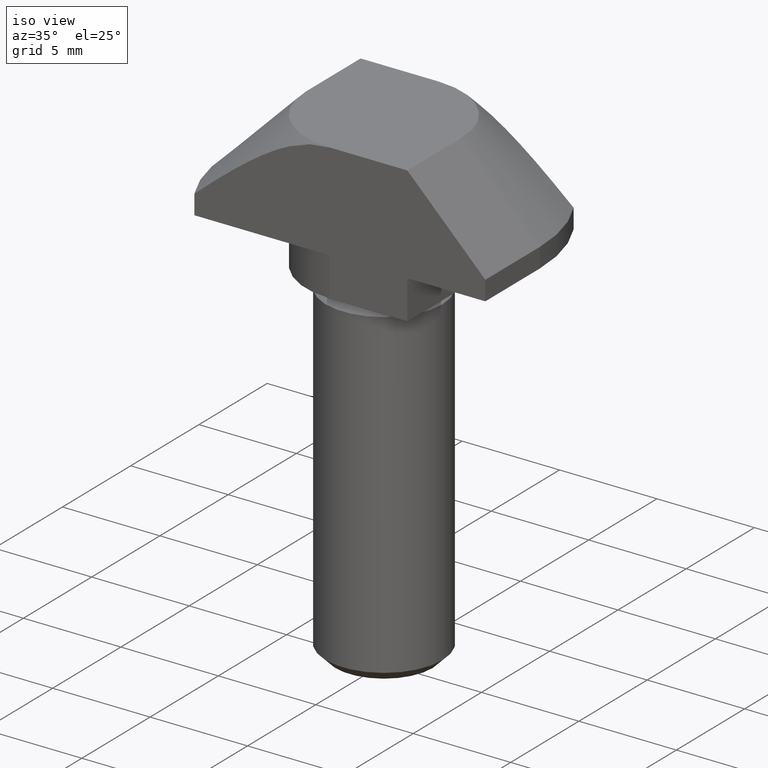
[diagram: clean part render]
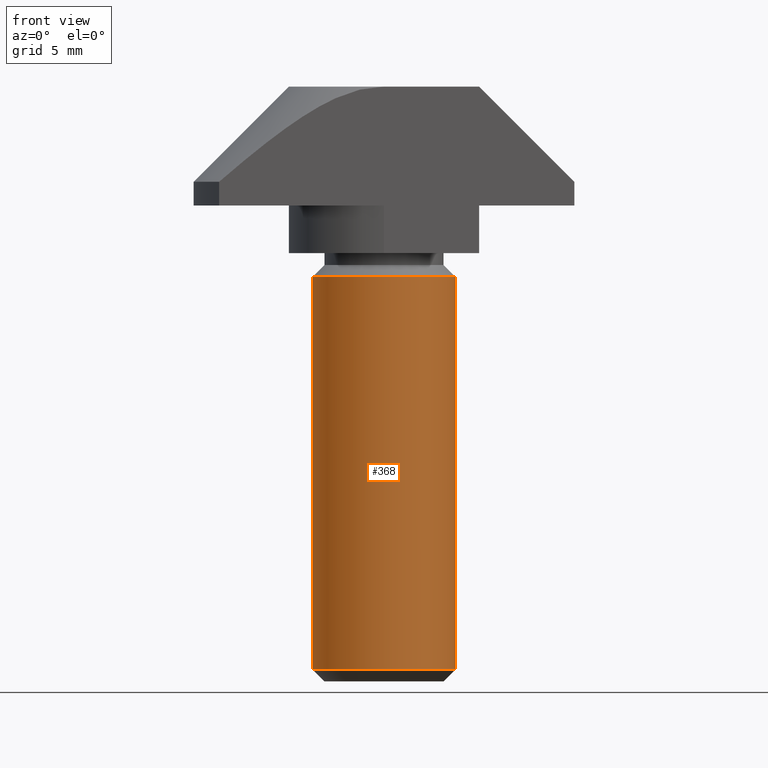
[diagram: tour spotlight — one face highlighted and labeled with its STEP entity id]
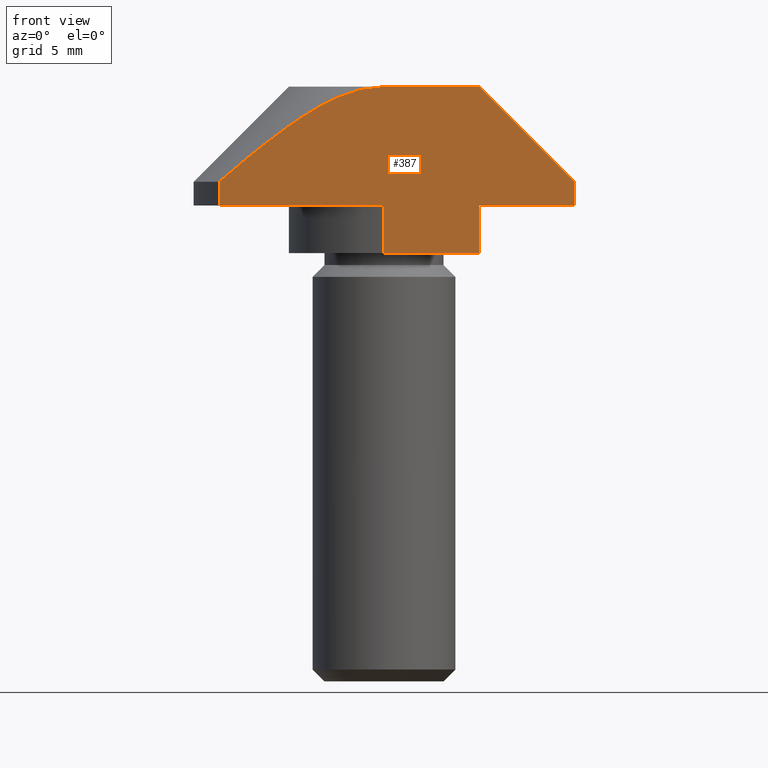
[diagram: tour spotlight — one face highlighted and labeled with its STEP entity id]
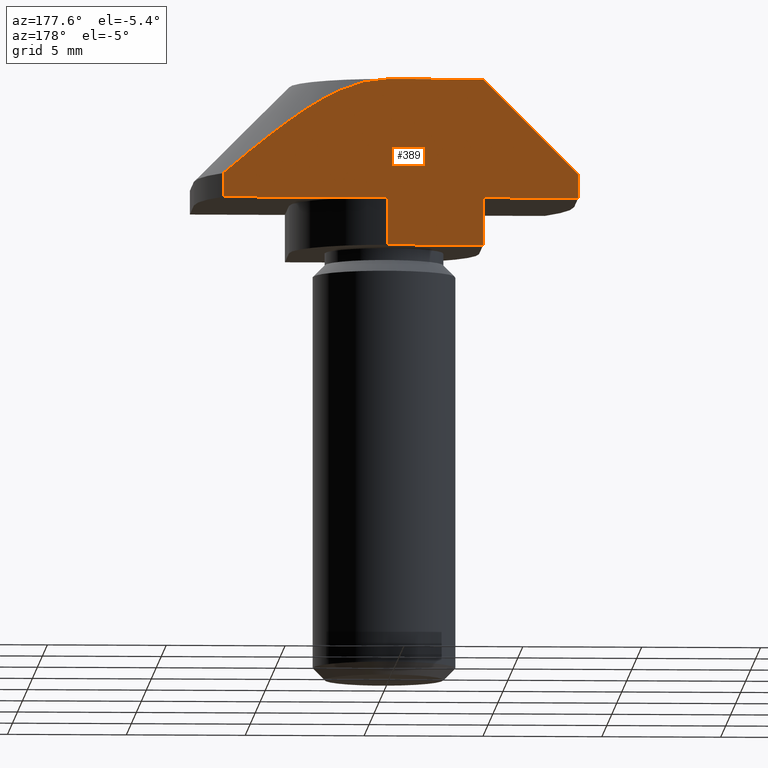
[diagram: tour spotlight — one face highlighted and labeled with its STEP entity id]
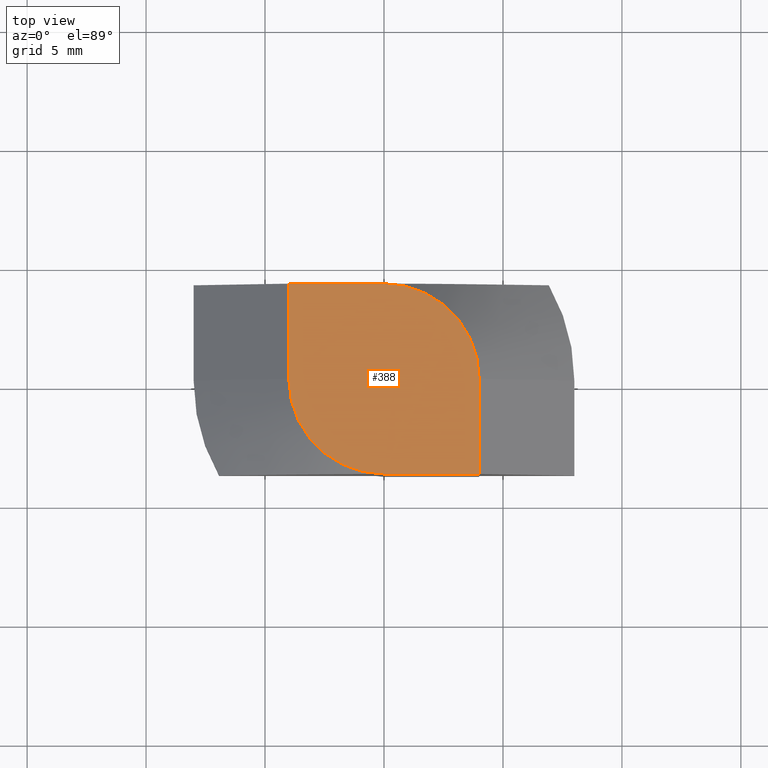
[diagram: tour spotlight — one face highlighted and labeled with its STEP entity id]
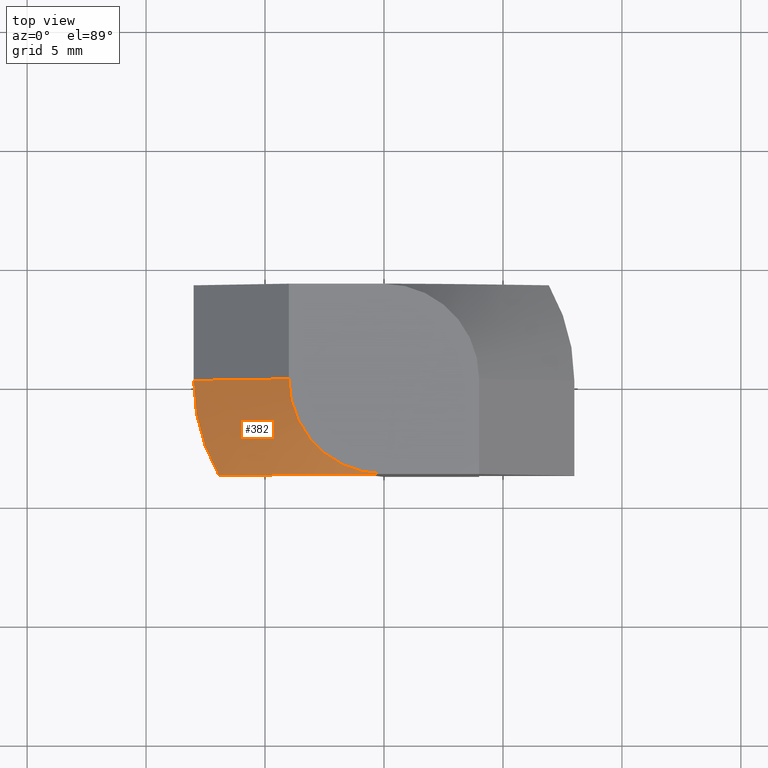
[diagram: tour spotlight — one face highlighted and labeled with its STEP entity id]
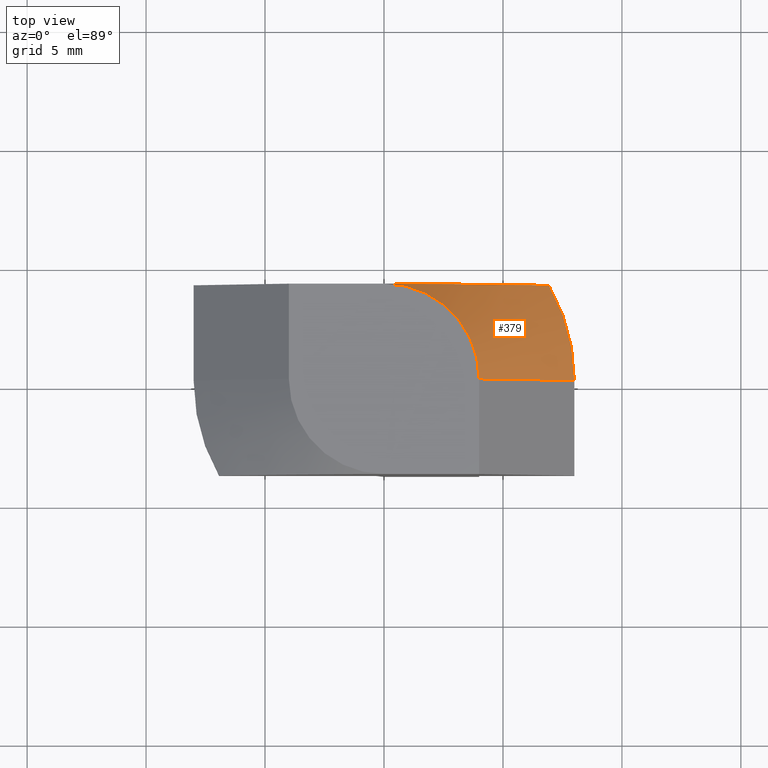
[diagram: tour spotlight — one face highlighted and labeled with its STEP entity id]
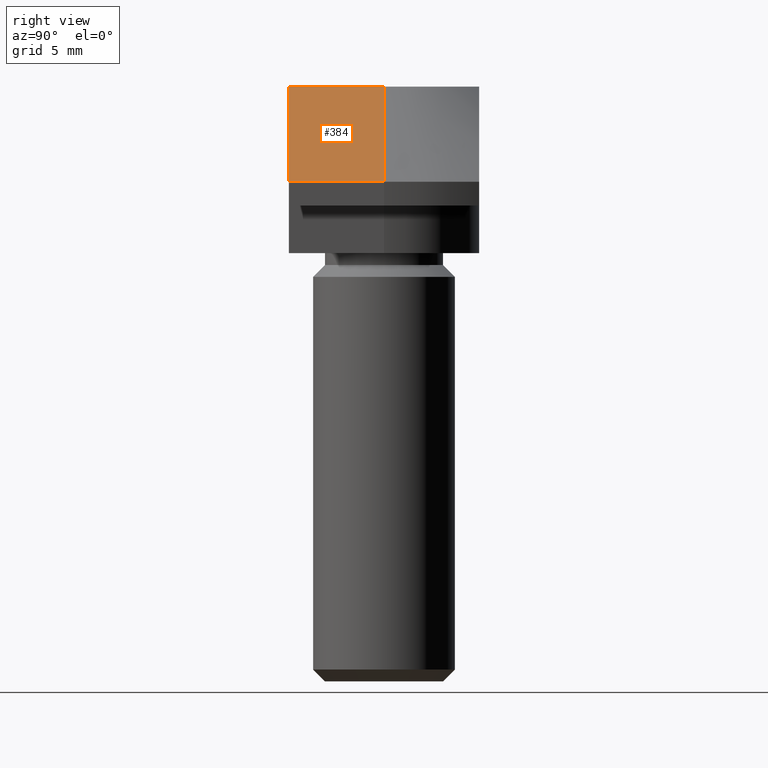
[diagram: tour spotlight — one face highlighted and labeled with its STEP entity id]
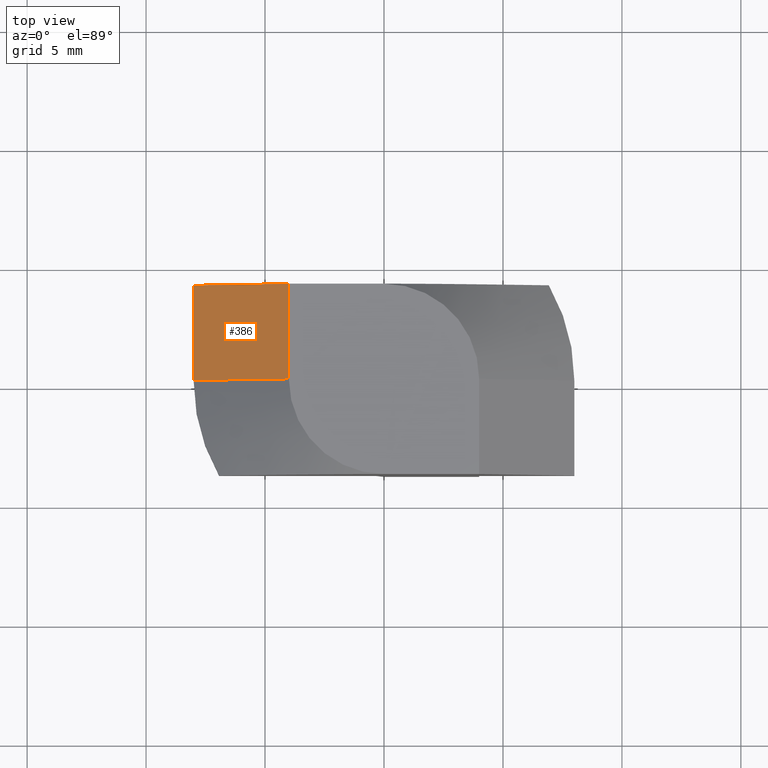
[diagram: tour spotlight — one face highlighted and labeled with its STEP entity id]
A machine part: a face-by-face anatomy tour. The part has 23 B-rep faces; the first image is the clean iso view, then the 8 largest visible faces are spotlighted one at a time (largest first), each with its STEP entity span.

Face 1 — front view, entity #368. In plain terms, the highlighted cylindrical surface (bore or boss wall) has radius 3 mm, axis along (0, 0, -1).
Definition (entity closure, byte-faithful):
#98=CYLINDRICAL_SURFACE('',#395,3.);
#105=FACE_BOUND('',#135,.T.);
#110=FACE_OUTER_BOUND('',#134,.T.);
#134=EDGE_LOOP('',(#263));
#135=EDGE_LOOP('',(#264));
#160=CIRCLE('',#393,3.);
#162=CIRCLE('',#396,3.);
#175=VERTEX_POINT('',#544);
#177=VERTEX_POINT('',#549);
#210=EDGE_CURVE('',#175,#175,#160,.T.);
#212=EDGE_CURVE('',#177,#177,#162,.T.);
#263=ORIENTED_EDGE('',*,*,#212,.F.);
#264=ORIENTED_EDGE('',*,*,#210,.F.);
#368=ADVANCED_FACE('',(#110,#105),#98,.T.);
#393=AXIS2_PLACEMENT_3D('',#545,#434,#435);
#395=AXIS2_PLACEMENT_3D('',#548,#438,#439);
#396=AXIS2_PLACEMENT_3D('',#550,#440,#441);
#434=DIRECTION('center_axis',(0.,0.,1.));
#435=DIRECTION('ref_axis',(1.,0.,0.));
#438=DIRECTION('center_axis',(0.,0.,-1.));
#439=DIRECTION('ref_axis',(1.,0.,0.));
#440=DIRECTION('center_axis',(0.,0.,-1.));
#441=DIRECTION('ref_axis',(1.,0.,0.));
#544=CARTESIAN_POINT('',(-3.,-3.67394039744206E-16,-8.));
#545=CARTESIAN_POINT('Origin',(0.,0.,-8.));
#548=CARTESIAN_POINT('Origin',(0.,0.,-7.5));
#549=CARTESIAN_POINT('',(-3.,3.67394039744206E-16,-24.5));
#550=CARTESIAN_POINT('Origin',(0.,0.,-24.5));

Face 2 — front view, entity #387. In plain terms, the highlighted planar face has unit normal (0, -1, 0).
Definition (entity closure, byte-faithful):
#16=(
BOUNDED_CURVE()
B_SPLINE_CURVE(2,(#629,#630,#631),.UNSPECIFIED.,.F.,.F.)
B_SPLINE_CURVE_WITH_KNOTS((3,3),(0.810833102436449,1.6216662048729),
 .UNSPECIFIED.)
CURVE()
GEOMETRIC_REPRESENTATION_ITEM()
RATIONAL_B_SPLINE_CURVE((1.,1.22474487139159,1.))
REPRESENTATION_ITEM('')
);
#21=LINE('',#572,#55);
#23=LINE('',#578,#57);
#28=LINE('',#590,#62);
#29=LINE('',#593,#63);
#34=LINE('',#606,#68);
#38=LINE('',#623,#72);
#42=LINE('',#638,#76);
#44=LINE('',#642,#78);
#49=LINE('',#652,#83);
#55=VECTOR('',#464,2.);
#57=VECTOR('',#468,2.);
#62=VECTOR('',#481,3.99999999999999);
#63=VECTOR('',#484,6.92820323027551);
#68=VECTOR('',#495,4.00000000000001);
#72=VECTOR('',#509,1.);
#76=VECTOR('',#521,1.);
#78=VECTOR('',#525,5.65685424949238);
#83=VECTOR('',#536,4.);
#95=PLANE('',#427);
#129=FACE_OUTER_BOUND('',#157,.T.);
#157=EDGE_LOOP('',(#337,#338,#339,#340,#341,#342,#343,#344,#345,#346));
#184=VERTEX_POINT('',#568);
#185=VERTEX_POINT('',#570);
#186=VERTEX_POINT('',#574);
#188=VERTEX_POINT('',#577);
#192=VERTEX_POINT('',#592);
#197=VERTEX_POINT('',#604);
#202=VERTEX_POINT('',#622);
#204=VERTEX_POINT('',#628);
#206=VERTEX_POINT('',#636);
#207=VERTEX_POINT('',#640);
#221=EDGE_CURVE('',#184,#185,#21,.T.);
#223=EDGE_CURVE('',#186,#188,#23,.T.);
#230=EDGE_CURVE('',#188,#185,#28,.T.);
#231=EDGE_CURVE('',#192,#184,#29,.T.);
#238=EDGE_CURVE('',#186,#197,#34,.T.);
#245=EDGE_CURVE('',#202,#192,#38,.T.);
#248=EDGE_CURVE('',#204,#202,#16,.T.);
#252=EDGE_CURVE('',#197,#206,#42,.T.);
#254=EDGE_CURVE('',#206,#207,#44,.T.);
#259=EDGE_CURVE('',#207,#204,#49,.T.);
#337=ORIENTED_EDGE('',*,*,#245,.T.);
#338=ORIENTED_EDGE('',*,*,#231,.T.);
#339=ORIENTED_EDGE('',*,*,#221,.T.);
#340=ORIENTED_EDGE('',*,*,#230,.F.);
#341=ORIENTED_EDGE('',*,*,#223,.F.);
#342=ORIENTED_EDGE('',*,*,#238,.T.);
#343=ORIENTED_EDGE('',*,*,#252,.T.);
#344=ORIENTED_EDGE('',*,*,#254,.T.);
#345=ORIENTED_EDGE('',*,*,#259,.T.);
#346=ORIENTED_EDGE('',*,*,#248,.T.);
#387=ADVANCED_FACE('',(#129),#95,.T.);
#427=AXIS2_PLACEMENT_3D('',#651,#534,#535);
#464=DIRECTION('',(0.,0.,-1.));
#468=DIRECTION('',(0.,0.,-1.));
#481=DIRECTION('',(-1.,3.06161699786838E-16,0.));
#484=DIRECTION('',(1.,0.,0.));
#495=DIRECTION('',(1.,0.,0.));
#509=DIRECTION('',(0.,0.,-1.));
#521=DIRECTION('',(0.,0.,1.));
#525=DIRECTION('',(-0.707106781186548,0.,0.707106781186548));
#534=DIRECTION('center_axis',(0.,-1.,0.));
#535=DIRECTION('ref_axis',(0.,0.,-1.));
#536=DIRECTION('',(-1.,0.,-2.55361505453359E-18));
#568=CARTESIAN_POINT('',(0.,-3.99999999999999,-5.));
#570=CARTESIAN_POINT('',(0.,-3.99999999999999,-7.));
#572=CARTESIAN_POINT('',(0.,-3.99999999999999,-5.));
#574=CARTESIAN_POINT('',(3.99999999999999,-3.99999999999999,-5.));
#577=CARTESIAN_POINT('',(3.99999999999999,-3.99999999999999,-7.));
#578=CARTESIAN_POINT('',(3.99999999999999,-3.99999999999999,-5.));
#590=CARTESIAN_POINT('',(0.,-3.99999999999999,-7.));
#592=CARTESIAN_POINT('',(-6.92820323027551,-4.,-5.));
#593=CARTESIAN_POINT('',(-8.,-4.,-5.));
#604=CARTESIAN_POINT('',(8.,-4.,-5.));
#606=CARTESIAN_POINT('',(-8.,-4.,-5.));
#622=CARTESIAN_POINT('',(-6.92820323027551,-4.,-4.));
#623=CARTESIAN_POINT('',(-6.92820323027551,-4.,-4.5));
#628=CARTESIAN_POINT('',(-2.44929359829471E-16,-4.,0.));
#629=CARTESIAN_POINT('Ctrl Pts',(0.,-4.,-8.32667268468867E-16));
#630=CARTESIAN_POINT('Ctrl Pts',(-2.3094010767585,-4.,-1.04083408558608E-15));
#631=CARTESIAN_POINT('Ctrl Pts',(-6.92820323027551,-4.,-4.));
#636=CARTESIAN_POINT('',(8.,-4.,-4.));
#638=CARTESIAN_POINT('',(8.,-4.,-5.));
#640=CARTESIAN_POINT('',(4.,-4.,0.));
#642=CARTESIAN_POINT('',(8.,-4.,-4.));
#651=CARTESIAN_POINT('Origin',(1.11022302462516E-15,-4.,-2.99159267433862));
#652=CARTESIAN_POINT('',(4.,-4.,-3.30907977955027E-23));

Face 3 — auxiliary view, entity #389. In plain terms, the highlighted planar face has unit normal (0, 1, 0).
Definition (entity closure, byte-faithful):
#15=(
BOUNDED_CURVE()
B_SPLINE_CURVE(2,(#610,#611,#612),.UNSPECIFIED.,.F.,.F.)
B_SPLINE_CURVE_WITH_KNOTS((3,3),(0.810833102436449,1.6216662048729),
 .UNSPECIFIED.)
CURVE()
GEOMETRIC_REPRESENTATION_ITEM()
RATIONAL_B_SPLINE_CURVE((1.,1.22474487139159,1.))
REPRESENTATION_ITEM('')
);
#18=LINE('',#563,#52);
#26=LINE('',#587,#60);
#27=LINE('',#589,#61);
#31=LINE('',#598,#65);
#32=LINE('',#601,#66);
#36=LINE('',#619,#70);
#46=LINE('',#646,#80);
#48=LINE('',#650,#82);
#50=LINE('',#654,#84);
#52=VECTOR('',#455,2.);
#60=VECTOR('',#477,2.);
#61=VECTOR('',#480,4.);
#65=VECTOR('',#488,4.);
#66=VECTOR('',#491,6.92820323027551);
#70=VECTOR('',#505,1.);
#80=VECTOR('',#529,1.);
#82=VECTOR('',#533,5.65685424949238);
#84=VECTOR('',#539,4.);
#97=PLANE('',#429);
#131=FACE_OUTER_BOUND('',#159,.T.);
#159=EDGE_LOOP('',(#353,#354,#355,#356,#357,#358,#359,#360,#361,#362));
#180=VERTEX_POINT('',#559);
#182=VERTEX_POINT('',#562);
#190=VERTEX_POINT('',#583);
#191=VERTEX_POINT('',#585);
#194=VERTEX_POINT('',#596);
#195=VERTEX_POINT('',#600);
#198=VERTEX_POINT('',#608);
#199=VERTEX_POINT('',#609);
#208=VERTEX_POINT('',#644);
#209=VERTEX_POINT('',#648);
#216=EDGE_CURVE('',#180,#182,#18,.T.);
#228=EDGE_CURVE('',#190,#191,#26,.T.);
#229=EDGE_CURVE('',#182,#191,#27,.T.);
#234=EDGE_CURVE('',#180,#194,#31,.T.);
#235=EDGE_CURVE('',#195,#190,#32,.T.);
#239=EDGE_CURVE('',#198,#199,#15,.T.);
#243=EDGE_CURVE('',#199,#195,#36,.T.);
#256=EDGE_CURVE('',#194,#208,#46,.T.);
#258=EDGE_CURVE('',#208,#209,#48,.T.);
#260=EDGE_CURVE('',#209,#198,#50,.T.);
#353=ORIENTED_EDGE('',*,*,#243,.T.);
#354=ORIENTED_EDGE('',*,*,#235,.T.);
#355=ORIENTED_EDGE('',*,*,#228,.T.);
#356=ORIENTED_EDGE('',*,*,#229,.F.);
#357=ORIENTED_EDGE('',*,*,#216,.F.);
#358=ORIENTED_EDGE('',*,*,#234,.T.);
#359=ORIENTED_EDGE('',*,*,#256,.T.);
#360=ORIENTED_EDGE('',*,*,#258,.T.);
#361=ORIENTED_EDGE('',*,*,#260,.T.);
#362=ORIENTED_EDGE('',*,*,#239,.T.);
#389=ADVANCED_FACE('',(#131),#97,.T.);
#429=AXIS2_PLACEMENT_3D('',#655,#540,#541);
#455=DIRECTION('',(0.,0.,-1.));
#477=DIRECTION('',(0.,0.,-1.));
#480=DIRECTION('',(1.,0.,0.));
#488=DIRECTION('',(-1.,0.,0.));
#491=DIRECTION('',(-1.,0.,0.));
#505=DIRECTION('',(0.,0.,-1.));
#529=DIRECTION('',(0.,0.,1.));
#533=DIRECTION('',(0.707106781186547,0.,0.707106781186548));
#539=DIRECTION('',(1.,0.,2.55361505453359E-18));
#540=DIRECTION('center_axis',(0.,1.,0.));
#541=DIRECTION('ref_axis',(0.,0.,1.));
#559=CARTESIAN_POINT('',(-4.,3.99999999999998,-5.));
#562=CARTESIAN_POINT('',(-4.,3.99999999999998,-7.));
#563=CARTESIAN_POINT('',(-4.,3.99999999999998,-5.));
#583=CARTESIAN_POINT('',(0.,3.99999999999998,-5.));
#585=CARTESIAN_POINT('',(0.,3.99999999999998,-7.));
#587=CARTESIAN_POINT('',(0.,3.99999999999998,-5.));
#589=CARTESIAN_POINT('',(0.,3.99999999999998,-7.));
#596=CARTESIAN_POINT('',(-8.,4.,-5.));
#598=CARTESIAN_POINT('',(-8.,4.,-5.));
#600=CARTESIAN_POINT('',(6.92820323027551,4.,-5.));
#601=CARTESIAN_POINT('',(-8.,4.,-5.));
#608=CARTESIAN_POINT('',(2.44929359829471E-16,4.,0.));
#609=CARTESIAN_POINT('',(6.92820323027551,4.,-4.));
#610=CARTESIAN_POINT('Ctrl Pts',(0.,4.,2.77555756156289E-16));
#611=CARTESIAN_POINT('Ctrl Pts',(2.3094010767585,4.,-2.77555756156289E-16));
#612=CARTESIAN_POINT('Ctrl Pts',(6.92820323027551,4.,-4.));
#619=CARTESIAN_POINT('',(6.92820323027551,4.,-4.5));
#644=CARTESIAN_POINT('',(-8.,4.,-4.));
#646=CARTESIAN_POINT('',(-8.,4.,-4.));
#648=CARTESIAN_POINT('',(-4.,4.,0.));
#650=CARTESIAN_POINT('',(-4.,4.,-2.04289535270665E-17));
#654=CARTESIAN_POINT('',(4.,4.,-3.30907977955027E-23));
#655=CARTESIAN_POINT('Origin',(1.11022302462516E-15,4.,-2.99159267433862));

Face 4 — top view, entity #388. In plain terms, the highlighted planar face has unit normal (-0, 0, 1).
Definition (entity closure, byte-faithful):
#43=LINE('',#641,#77);
#47=LINE('',#649,#81);
#49=LINE('',#652,#83);
#50=LINE('',#654,#84);
#77=VECTOR('',#524,4.);
#81=VECTOR('',#532,4.);
#83=VECTOR('',#536,4.);
#84=VECTOR('',#539,4.);
#96=PLANE('',#428);
#130=FACE_OUTER_BOUND('',#158,.T.);
#158=EDGE_LOOP('',(#347,#348,#349,#350,#351,#352));
#171=CIRCLE('',#416,4.);
#174=CIRCLE('',#422,4.);
#198=VERTEX_POINT('',#608);
#200=VERTEX_POINT('',#613);
#204=VERTEX_POINT('',#628);
#205=VERTEX_POINT('',#632);
#207=VERTEX_POINT('',#640);
#209=VERTEX_POINT('',#648);
#240=EDGE_CURVE('',#200,#198,#171,.T.);
#249=EDGE_CURVE('',#205,#204,#174,.T.);
#253=EDGE_CURVE('',#200,#207,#43,.T.);
#257=EDGE_CURVE('',#209,#205,#47,.T.);
#259=EDGE_CURVE('',#207,#204,#49,.T.);
#260=EDGE_CURVE('',#209,#198,#50,.T.);
#347=ORIENTED_EDGE('',*,*,#240,.T.);
#348=ORIENTED_EDGE('',*,*,#260,.F.);
#349=ORIENTED_EDGE('',*,*,#257,.T.);
#350=ORIENTED_EDGE('',*,*,#249,.T.);
#351=ORIENTED_EDGE('',*,*,#259,.F.);
#352=ORIENTED_EDGE('',*,*,#253,.F.);
#388=ADVANCED_FACE('',(#130),#96,.T.);
#416=AXIS2_PLACEMENT_3D('',#614,#498,#499);
#422=AXIS2_PLACEMENT_3D('',#633,#515,#516);
#428=AXIS2_PLACEMENT_3D('',#653,#537,#538);
#498=DIRECTION('center_axis',(-2.55361505453359E-18,0.,1.));
#499=DIRECTION('ref_axis',(1.,0.,0.));
#515=DIRECTION('center_axis',(-2.55361505453359E-18,0.,1.));
#516=DIRECTION('ref_axis',(-1.,0.,0.));
#524=DIRECTION('',(0.,-1.,0.));
#532=DIRECTION('',(0.,-1.,0.));
#536=DIRECTION('',(-1.,0.,-2.55361505453359E-18));
#537=DIRECTION('center_axis',(-2.55361505453359E-18,0.,1.));
#538=DIRECTION('ref_axis',(1.,0.,2.55361505453359E-18));
#539=DIRECTION('',(1.,0.,2.55361505453359E-18));
#608=CARTESIAN_POINT('',(2.44929359829471E-16,4.,0.));
#613=CARTESIAN_POINT('',(4.,0.,0.));
#614=CARTESIAN_POINT('Origin',(0.,0.,0.));
#628=CARTESIAN_POINT('',(-2.44929359829471E-16,-4.,0.));
#632=CARTESIAN_POINT('',(-4.,0.,0.));
#633=CARTESIAN_POINT('Origin',(0.,0.,0.));
#640=CARTESIAN_POINT('',(4.,-4.,0.));
#641=CARTESIAN_POINT('',(4.,0.,-3.30907977955027E-23));
#648=CARTESIAN_POINT('',(-4.,4.,0.));
#649=CARTESIAN_POINT('',(-4.,0.,-2.04289535270665E-17));
#652=CARTESIAN_POINT('',(4.,-4.,-3.30907977955027E-23));
#653=CARTESIAN_POINT('Origin',(-4.,0.,-2.04289535270665E-17));
#654=CARTESIAN_POINT('',(4.,4.,-3.30907977955027E-23));

Face 5 — top view, entity #382. In plain terms, the highlighted conical surface has half-angle 45 deg.
Definition (entity closure, byte-faithful):
#16=(
BOUNDED_CURVE()
B_SPLINE_CURVE(2,(#629,#630,#631),.UNSPECIFIED.,.F.,.F.)
B_SPLINE_CURVE_WITH_KNOTS((3,3),(0.810833102436449,1.6216662048729),
 .UNSPECIFIED.)
CURVE()
GEOMETRIC_REPRESENTATION_ITEM()
RATIONAL_B_SPLINE_CURVE((1.,1.22474487139159,1.))
REPRESENTATION_ITEM('')
);
#40=LINE('',#634,#74);
#74=VECTOR('',#517,5.65685424949238);
#124=FACE_OUTER_BOUND('',#152,.T.);
#152=EDGE_LOOP('',(#317,#318,#319,#320));
#173=CIRCLE('',#420,8.);
#174=CIRCLE('',#422,4.);
#202=VERTEX_POINT('',#622);
#203=VERTEX_POINT('',#624);
#204=VERTEX_POINT('',#628);
#205=VERTEX_POINT('',#632);
#246=EDGE_CURVE('',#203,#202,#173,.T.);
#248=EDGE_CURVE('',#204,#202,#16,.T.);
#249=EDGE_CURVE('',#205,#204,#174,.T.);
#250=EDGE_CURVE('',#205,#203,#40,.T.);
#317=ORIENTED_EDGE('',*,*,#248,.F.);
#318=ORIENTED_EDGE('',*,*,#249,.F.);
#319=ORIENTED_EDGE('',*,*,#250,.T.);
#320=ORIENTED_EDGE('',*,*,#246,.T.);
#366=CONICAL_SURFACE('',#421,6.,45.);
#382=ADVANCED_FACE('',(#124),#366,.T.);
#420=AXIS2_PLACEMENT_3D('',#625,#510,#511);
#421=AXIS2_PLACEMENT_3D('',#627,#513,#514);
#422=AXIS2_PLACEMENT_3D('',#633,#515,#516);
#510=DIRECTION('center_axis',(0.,0.,1.));
#511=DIRECTION('ref_axis',(-1.,-4.16333634234434E-16,0.));
#513=DIRECTION('center_axis',(0.,0.,-1.));
#514=DIRECTION('ref_axis',(-1.,0.,0.));
#515=DIRECTION('center_axis',(-2.55361505453359E-18,0.,1.));
#516=DIRECTION('ref_axis',(-1.,0.,0.));
#517=DIRECTION('',(-0.707106781186547,0.,-0.707106781186548));
#622=CARTESIAN_POINT('',(-6.92820323027551,-4.,-4.));
#624=CARTESIAN_POINT('',(-8.,0.,-4.));
#625=CARTESIAN_POINT('Origin',(0.,3.33066907387547E-15,-4.));
#627=CARTESIAN_POINT('Origin',(0.,0.,-2.));
#628=CARTESIAN_POINT('',(-2.44929359829471E-16,-4.,0.));
#629=CARTESIAN_POINT('Ctrl Pts',(0.,-4.,-8.32667268468867E-16));
#630=CARTESIAN_POINT('Ctrl Pts',(-2.3094010767585,-4.,-1.04083408558608E-15));
#631=CARTESIAN_POINT('Ctrl Pts',(-6.92820323027551,-4.,-4.));
#632=CARTESIAN_POINT('',(-4.,0.,0.));
#633=CARTESIAN_POINT('Origin',(0.,0.,0.));
#634=CARTESIAN_POINT('',(-6.,0.,-2.));

Face 6 — top view, entity #379. In plain terms, the highlighted conical surface has half-angle 45 deg.
Definition (entity closure, byte-faithful):
#15=(
BOUNDED_CURVE()
B_SPLINE_CURVE(2,(#610,#611,#612),.UNSPECIFIED.,.F.,.F.)
B_SPLINE_CURVE_WITH_KNOTS((3,3),(0.810833102436449,1.6216662048729),
 .UNSPECIFIED.)
CURVE()
GEOMETRIC_REPRESENTATION_ITEM()
RATIONAL_B_SPLINE_CURVE((1.,1.22474487139159,1.))
REPRESENTATION_ITEM('')
);
#35=LINE('',#616,#69);
#69=VECTOR('',#500,5.65685424949238);
#121=FACE_OUTER_BOUND('',#149,.T.);
#149=EDGE_LOOP('',(#305,#306,#307,#308));
#171=CIRCLE('',#416,4.);
#172=CIRCLE('',#417,8.);
#198=VERTEX_POINT('',#608);
#199=VERTEX_POINT('',#609);
#200=VERTEX_POINT('',#613);
#201=VERTEX_POINT('',#615);
#239=EDGE_CURVE('',#198,#199,#15,.T.);
#240=EDGE_CURVE('',#200,#198,#171,.T.);
#241=EDGE_CURVE('',#200,#201,#35,.T.);
#242=EDGE_CURVE('',#201,#199,#172,.T.);
#305=ORIENTED_EDGE('',*,*,#239,.F.);
#306=ORIENTED_EDGE('',*,*,#240,.F.);
#307=ORIENTED_EDGE('',*,*,#241,.T.);
#308=ORIENTED_EDGE('',*,*,#242,.T.);
#365=CONICAL_SURFACE('',#415,6.,45.);
#379=ADVANCED_FACE('',(#121),#365,.T.);
#415=AXIS2_PLACEMENT_3D('',#607,#496,#497);
#416=AXIS2_PLACEMENT_3D('',#614,#498,#499);
#417=AXIS2_PLACEMENT_3D('',#617,#501,#502);
#496=DIRECTION('center_axis',(0.,0.,-1.));
#497=DIRECTION('ref_axis',(1.,0.,0.));
#498=DIRECTION('center_axis',(-2.55361505453359E-18,0.,1.));
#499=DIRECTION('ref_axis',(1.,0.,0.));
#500=DIRECTION('',(0.707106781186547,0.,-0.707106781186548));
#501=DIRECTION('center_axis',(0.,0.,1.));
#502=DIRECTION('ref_axis',(1.,2.77555756156289E-16,0.));
#607=CARTESIAN_POINT('Origin',(0.,0.,-2.));
#608=CARTESIAN_POINT('',(2.44929359829471E-16,4.,0.));
#609=CARTESIAN_POINT('',(6.92820323027551,4.,-4.));
#610=CARTESIAN_POINT('Ctrl Pts',(0.,4.,2.77555756156289E-16));
#611=CARTESIAN_POINT('Ctrl Pts',(2.3094010767585,4.,-2.77555756156289E-16));
#612=CARTESIAN_POINT('Ctrl Pts',(6.92820323027551,4.,-4.));
#613=CARTESIAN_POINT('',(4.,0.,0.));
#614=CARTESIAN_POINT('Origin',(0.,0.,0.));
#615=CARTESIAN_POINT('',(8.,0.,-4.));
#616=CARTESIAN_POINT('',(6.,0.,-2.));
#617=CARTESIAN_POINT('Origin',(-2.22044604925031E-15,-2.22044604925031E-15,
-4.));

Face 7 — right view, entity #384. In plain terms, the highlighted planar face has unit normal (0.7071, 0, 0.7071).
Definition (entity closure, byte-faithful):
#35=LINE('',#616,#69);
#41=LINE('',#637,#75);
#43=LINE('',#641,#77);
#44=LINE('',#642,#78);
#69=VECTOR('',#500,5.65685424949238);
#75=VECTOR('',#520,4.);
#77=VECTOR('',#524,4.);
#78=VECTOR('',#525,5.65685424949238);
#92=PLANE('',#424);
#126=FACE_OUTER_BOUND('',#154,.T.);
#154=EDGE_LOOP('',(#325,#326,#327,#328));
#200=VERTEX_POINT('',#613);
#201=VERTEX_POINT('',#615);
#206=VERTEX_POINT('',#636);
#207=VERTEX_POINT('',#640);
#241=EDGE_CURVE('',#200,#201,#35,.T.);
#251=EDGE_CURVE('',#201,#206,#41,.T.);
#253=EDGE_CURVE('',#200,#207,#43,.T.);
#254=EDGE_CURVE('',#206,#207,#44,.T.);
#325=ORIENTED_EDGE('',*,*,#241,.F.);
#326=ORIENTED_EDGE('',*,*,#253,.T.);
#327=ORIENTED_EDGE('',*,*,#254,.F.);
#328=ORIENTED_EDGE('',*,*,#251,.F.);
#384=ADVANCED_FACE('',(#126),#92,.T.);
#424=AXIS2_PLACEMENT_3D('',#639,#522,#523);
#500=DIRECTION('',(0.707106781186547,0.,-0.707106781186548));
#520=DIRECTION('',(0.,-1.,0.));
#522=DIRECTION('center_axis',(0.707106781186548,0.,0.707106781186548));
#523=DIRECTION('ref_axis',(0.707106781186548,0.,-0.707106781186548));
#524=DIRECTION('',(0.,-1.,0.));
#525=DIRECTION('',(-0.707106781186548,0.,0.707106781186548));
#613=CARTESIAN_POINT('',(4.,0.,0.));
#615=CARTESIAN_POINT('',(8.,0.,-4.));
#616=CARTESIAN_POINT('',(6.,0.,-2.));
#636=CARTESIAN_POINT('',(8.,-4.,-4.));
#637=CARTESIAN_POINT('',(8.,0.,-4.));
#639=CARTESIAN_POINT('Origin',(4.,0.,5.55111512312578E-16));
#640=CARTESIAN_POINT('',(4.,-4.,0.));
#641=CARTESIAN_POINT('',(4.,0.,-3.30907977955027E-23));
#642=CARTESIAN_POINT('',(8.,-4.,-4.));

Face 8 — top view, entity #386. In plain terms, the highlighted planar face has unit normal (-0.7071, 0, 0.7071).
Definition (entity closure, byte-faithful):
#40=LINE('',#634,#74);
#45=LINE('',#645,#79);
#47=LINE('',#649,#81);
#48=LINE('',#650,#82);
#74=VECTOR('',#517,5.65685424949238);
#79=VECTOR('',#528,4.);
#81=VECTOR('',#532,4.);
#82=VECTOR('',#533,5.65685424949238);
#94=PLANE('',#426);
#128=FACE_OUTER_BOUND('',#156,.T.);
#156=EDGE_LOOP('',(#333,#334,#335,#336));
#203=VERTEX_POINT('',#624);
#205=VERTEX_POINT('',#632);
#208=VERTEX_POINT('',#644);
#209=VERTEX_POINT('',#648);
#250=EDGE_CURVE('',#205,#203,#40,.T.);
#255=EDGE_CURVE('',#208,#203,#45,.T.);
#257=EDGE_CURVE('',#209,#205,#47,.T.);
#258=EDGE_CURVE('',#208,#209,#48,.T.);
#333=ORIENTED_EDGE('',*,*,#250,.F.);
#334=ORIENTED_EDGE('',*,*,#257,.F.);
#335=ORIENTED_EDGE('',*,*,#258,.F.);
#336=ORIENTED_EDGE('',*,*,#255,.T.);
#386=ADVANCED_FACE('',(#128),#94,.T.);
#426=AXIS2_PLACEMENT_3D('',#647,#530,#531);
#517=DIRECTION('',(-0.707106781186547,0.,-0.707106781186548));
#528=DIRECTION('',(0.,-1.,0.));
#530=DIRECTION('center_axis',(-0.707106781186548,0.,0.707106781186547));
#531=DIRECTION('ref_axis',(0.707106781186547,0.,0.707106781186548));
#532=DIRECTION('',(0.,-1.,0.));
#533=DIRECTION('',(0.707106781186547,0.,0.707106781186548));
#624=CARTESIAN_POINT('',(-8.,0.,-4.));
#632=CARTESIAN_POINT('',(-4.,0.,0.));
#634=CARTESIAN_POINT('',(-6.,0.,-2.));
#644=CARTESIAN_POINT('',(-8.,4.,-4.));
#645=CARTESIAN_POINT('',(-8.,0.,-4.));
#647=CARTESIAN_POINT('Origin',(-8.,0.,-4.));
#648=CARTESIAN_POINT('',(-4.,4.,0.));
#649=CARTESIAN_POINT('',(-4.,0.,-2.04289535270665E-17));
#650=CARTESIAN_POINT('',(-4.,4.,-2.04289535270665E-17));